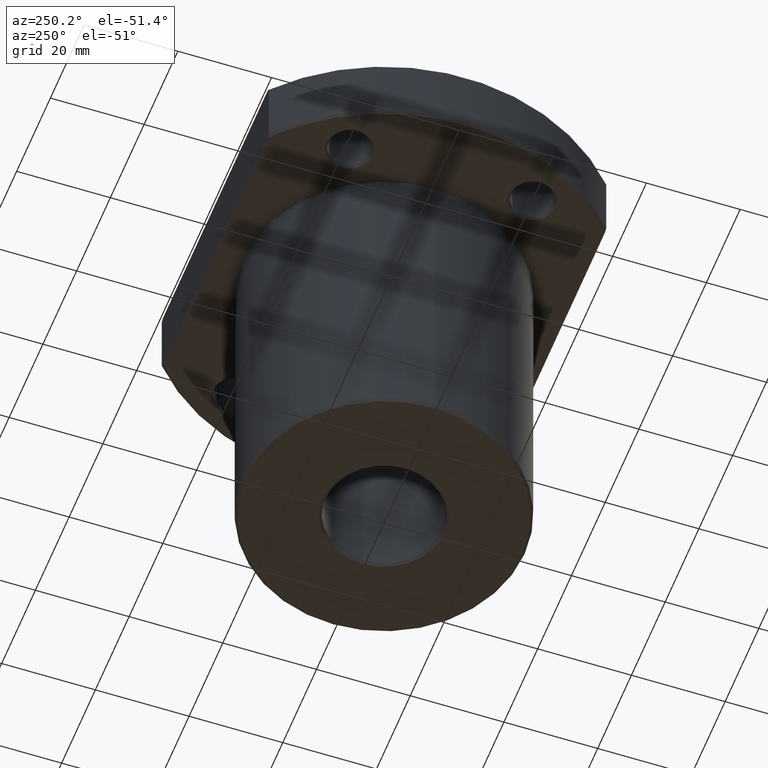
[diagram: clean part render]
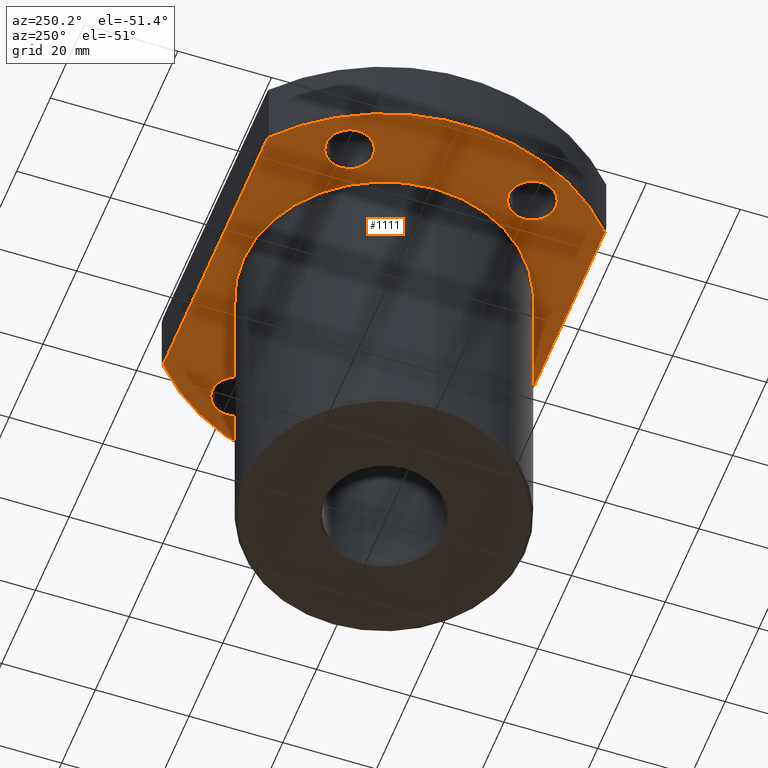
[diagram: same view with one face highlighted and labeled with its STEP entity id]
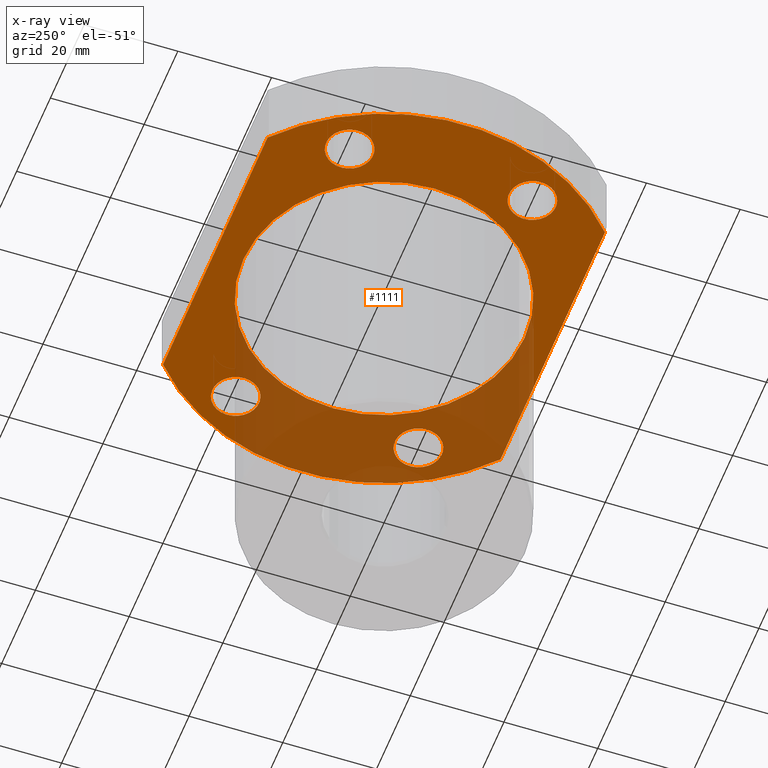
[diagram: x-ray of the same camera — body ghosted, the highlighted face saturated]
A machine part, auxiliary view. The second image highlights one B-rep face of the part: STEP entity #1111.
The next image is the same camera in x-ray: the body ghosted, the highlighted face saturated — about 36% of this face is hidden behind the body in this view.
In plain terms, the highlighted planar face has unit normal (0, 0, 1).
Its self-contained STEP definition (entity closure, byte-faithful):
#48=AXIS2_PLACEMENT_3D('Circle Axis2P3D',#46,#47,$) ;
#74=AXIS2_PLACEMENT_3D('Circle Axis2P3D',#72,#73,$) ;
#429=AXIS2_PLACEMENT_3D('Circle Axis2P3D',#427,#428,$) ;
#597=AXIS2_PLACEMENT_3D('Circle Axis2P3D',#595,#596,$) ;
#637=AXIS2_PLACEMENT_3D('Circle Axis2P3D',#635,#636,$) ;
#659=AXIS2_PLACEMENT_3D('Circle Axis2P3D',#657,#658,$) ;
#790=AXIS2_PLACEMENT_3D('Circle Axis2P3D',#788,#789,$) ;
#812=AXIS2_PLACEMENT_3D('Circle Axis2P3D',#810,#811,$) ;
#943=AXIS2_PLACEMENT_3D('Circle Axis2P3D',#941,#942,$) ;
#965=AXIS2_PLACEMENT_3D('Circle Axis2P3D',#963,#964,$) ;
#1069=AXIS2_PLACEMENT_3D('Plane Axis2P3D',#1066,#1067,#1068) ;
#1079=AXIS2_PLACEMENT_3D('Circle Axis2P3D',#1077,#1078,$) ;
#1088=AXIS2_PLACEMENT_3D('Circle Axis2P3D',#1086,#1087,$) ;
#43=CARTESIAN_POINT('Vertex',(-30.,1.6996495357E-014,70.)) ;
#46=CARTESIAN_POINT('Axis2P3D Location',(0.,0.,70.)) ;
#50=CARTESIAN_POINT('Vertex',(30.,0.,70.)) ;
#72=CARTESIAN_POINT('Axis2P3D Location',(0.,0.,70.)) ;
#416=CARTESIAN_POINT('Vertex',(30.9879008647,36.,70.)) ;
#424=CARTESIAN_POINT('Vertex',(30.9879008647,-36.,70.)) ;
#427=CARTESIAN_POINT('Axis2P3D Location',(-7.10542735761E-015,2.73531379339E-015,70.)) ;
#527=CARTESIAN_POINT('Vertex',(-30.9879008647,36.,70.)) ;
#535=CARTESIAN_POINT('Line Origine',(-3.5527136788E-015,36.,70.)) ;
#556=CARTESIAN_POINT('Line Origine',(1.06581410364E-014,-36.,70.)) ;
#560=CARTESIAN_POINT('Vertex',(-30.9879008647,-36.,70.)) ;
#595=CARTESIAN_POINT('Axis2P3D Location',(3.73604524713E-026,-5.65898131873E-015,70.)) ;
#616=CARTESIAN_POINT('Vertex',(-38.1051177658,22.0000000012,70.)) ;
#632=CARTESIAN_POINT('Vertex',(-29.4448637287,17.,70.)) ;
#635=CARTESIAN_POINT('Axis2P3D Location',(-33.7749907476,19.5,70.)) ;
#657=CARTESIAN_POINT('Axis2P3D Location',(-33.7749907476,19.5,70.)) ;
#769=CARTESIAN_POINT('Vertex',(-38.1051177672,-21.9999999988,70.)) ;
#785=CARTESIAN_POINT('Vertex',(-29.4448637287,-17.,70.)) ;
#788=CARTESIAN_POINT('Axis2P3D Location',(-33.7749907476,-19.5,70.)) ;
#810=CARTESIAN_POINT('Axis2P3D Location',(-33.7749907476,-19.5,70.)) ;
#922=CARTESIAN_POINT('Vertex',(38.1051177672,21.9999999988,70.)) ;
#938=CARTESIAN_POINT('Vertex',(29.4448637287,17.,70.)) ;
#941=CARTESIAN_POINT('Axis2P3D Location',(33.7749907476,19.5,70.)) ;
#963=CARTESIAN_POINT('Axis2P3D Location',(33.7749907476,19.5,70.)) ;
#1066=CARTESIAN_POINT('Axis2P3D Location',(0.,0.,70.)) ;
#1077=CARTESIAN_POINT('Axis2P3D Location',(33.7749907476,-19.5,70.)) ;
#1081=CARTESIAN_POINT('Vertex',(38.1051177658,-22.0000000012,70.)) ;
#1083=CARTESIAN_POINT('Vertex',(29.4448637287,-17.,70.)) ;
#1086=CARTESIAN_POINT('Axis2P3D Location',(33.7749907476,-19.5,70.)) ;
#47=DIRECTION('Axis2P3D Direction',(0.,0.,1.)) ;
#73=DIRECTION('Axis2P3D Direction',(0.,0.,1.)) ;
#428=DIRECTION('Axis2P3D Direction',(7.44776895309E-015,-8.04764134493E-015,1.)) ;
#536=DIRECTION('Vector Direction',(1.,0.,0.)) ;
#557=DIRECTION('Vector Direction',(1.,0.,0.)) ;
#596=DIRECTION('Axis2P3D Direction',(8.08199143973E-015,-8.7329465865E-015,1.)) ;
#636=DIRECTION('Axis2P3D Direction',(1.45485602687E-014,2.02134070109E-014,1.)) ;
#658=DIRECTION('Axis2P3D Direction',(-4.66270778538E-014,-8.07604678512E-014,1.)) ;
#789=DIRECTION('Axis2P3D Direction',(-8.50988942384E-015,1.88863059382E-014,1.)) ;
#811=DIRECTION('Axis2P3D Direction',(4.54542310779E-014,-7.87290376459E-014,1.)) ;
#942=DIRECTION('Axis2P3D Direction',(1.90882795233E-016,-8.76873081782E-016,1.)) ;
#964=DIRECTION('Axis2P3D Direction',(-4.85309713761E-014,8.40581081641E-014,1.)) ;
#1067=DIRECTION('Axis2P3D Direction',(0.,0.,1.)) ;
#1068=DIRECTION('Axis2P3D XDirection',(1.,0.,0.)) ;
#1078=DIRECTION('Axis2P3D Direction',(0.,0.,1.)) ;
#1087=DIRECTION('Axis2P3D Direction',(0.,0.,1.)) ;
#537=VECTOR('Line Direction',#536,1.) ;
#558=VECTOR('Line Direction',#557,1.) ;
#1072=ORIENTED_EDGE('',*,*,#599,.F.) ;
#1073=ORIENTED_EDGE('',*,*,#539,.F.) ;
#1074=ORIENTED_EDGE('',*,*,#431,.F.) ;
#1075=ORIENTED_EDGE('',*,*,#562,.F.) ;
#1092=ORIENTED_EDGE('',*,*,#1085,.T.) ;
#1093=ORIENTED_EDGE('',*,*,#1090,.T.) ;
#1096=ORIENTED_EDGE('',*,*,#945,.T.) ;
#1097=ORIENTED_EDGE('',*,*,#967,.T.) ;
#1100=ORIENTED_EDGE('',*,*,#792,.T.) ;
#1101=ORIENTED_EDGE('',*,*,#814,.T.) ;
#1104=ORIENTED_EDGE('',*,*,#639,.T.) ;
#1105=ORIENTED_EDGE('',*,*,#661,.T.) ;
#1108=ORIENTED_EDGE('',*,*,#76,.T.) ;
#1109=ORIENTED_EDGE('',*,*,#52,.T.) ;
#1094=FACE_BOUND('',#1091,.T.) ;
#1098=FACE_BOUND('',#1095,.T.) ;
#1102=FACE_BOUND('',#1099,.T.) ;
#1106=FACE_BOUND('',#1103,.T.) ;
#1110=FACE_BOUND('',#1107,.T.) ;
#1111=ADVANCED_FACE('',(#1076,#1094,#1098,#1102,#1106,#1110),#1070,.F.) ;
#49=CIRCLE('generated circle',#48,30.) ;
#75=CIRCLE('generated circle',#74,30.) ;
#430=CIRCLE('generated circle',#429,47.5) ;
#598=CIRCLE('generated circle',#597,47.5) ;
#638=CIRCLE('generated circle',#637,5.) ;
#660=CIRCLE('generated circle',#659,5.) ;
#791=CIRCLE('generated circle',#790,5.) ;
#813=CIRCLE('generated circle',#812,5.) ;
#944=CIRCLE('generated circle',#943,5.) ;
#966=CIRCLE('generated circle',#965,5.) ;
#1080=CIRCLE('generated circle',#1079,5.) ;
#1089=CIRCLE('generated circle',#1088,5.) ;
#52=EDGE_CURVE('',#51,#44,#49,.T.) ;
#76=EDGE_CURVE('',#44,#51,#75,.T.) ;
#431=EDGE_CURVE('',#425,#417,#430,.T.) ;
#539=EDGE_CURVE('',#417,#528,#538,.F.) ;
#562=EDGE_CURVE('',#561,#425,#559,.T.) ;
#599=EDGE_CURVE('',#528,#561,#598,.T.) ;
#639=EDGE_CURVE('',#617,#633,#638,.T.) ;
#661=EDGE_CURVE('',#633,#617,#660,.T.) ;
#792=EDGE_CURVE('',#770,#786,#791,.T.) ;
#814=EDGE_CURVE('',#786,#770,#813,.T.) ;
#945=EDGE_CURVE('',#923,#939,#944,.T.) ;
#967=EDGE_CURVE('',#939,#923,#966,.T.) ;
#1085=EDGE_CURVE('',#1082,#1084,#1080,.T.) ;
#1090=EDGE_CURVE('',#1084,#1082,#1089,.T.) ;
#1071=EDGE_LOOP('',(#1072,#1073,#1074,#1075)) ;
#1091=EDGE_LOOP('',(#1092,#1093)) ;
#1095=EDGE_LOOP('',(#1096,#1097)) ;
#1099=EDGE_LOOP('',(#1100,#1101)) ;
#1103=EDGE_LOOP('',(#1104,#1105)) ;
#1107=EDGE_LOOP('',(#1108,#1109)) ;
#1076=FACE_OUTER_BOUND('',#1071,.T.) ;
#538=LINE('Line',#535,#537) ;
#559=LINE('Line',#556,#558) ;
#1070=PLANE('Plane',#1069) ;
#44=VERTEX_POINT('',#43) ;
#51=VERTEX_POINT('',#50) ;
#417=VERTEX_POINT('',#416) ;
#425=VERTEX_POINT('',#424) ;
#528=VERTEX_POINT('',#527) ;
#561=VERTEX_POINT('',#560) ;
#617=VERTEX_POINT('',#616) ;
#633=VERTEX_POINT('',#632) ;
#770=VERTEX_POINT('',#769) ;
#786=VERTEX_POINT('',#785) ;
#923=VERTEX_POINT('',#922) ;
#939=VERTEX_POINT('',#938) ;
#1082=VERTEX_POINT('',#1081) ;
#1084=VERTEX_POINT('',#1083) ;